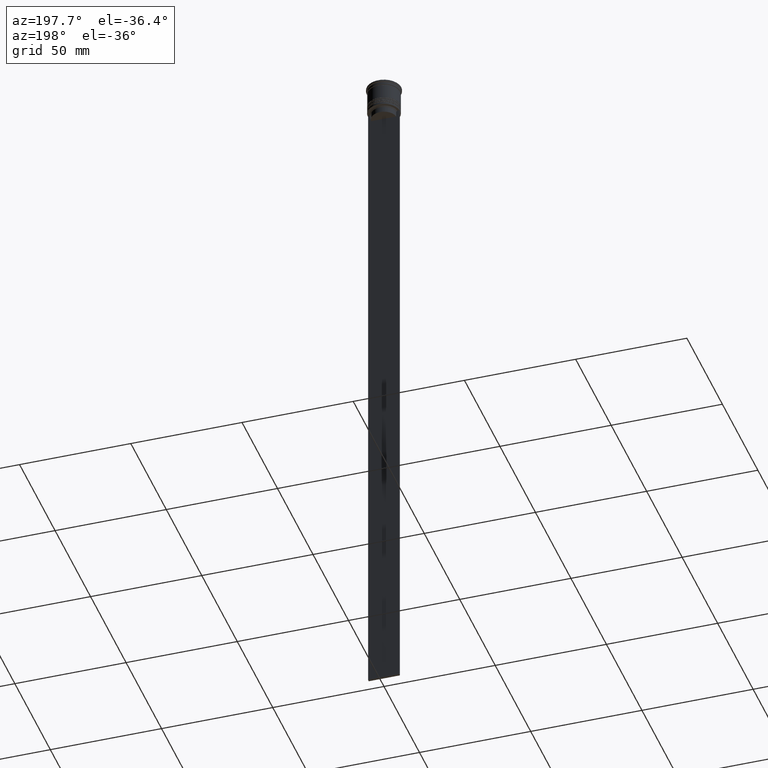
[diagram: clean part render]
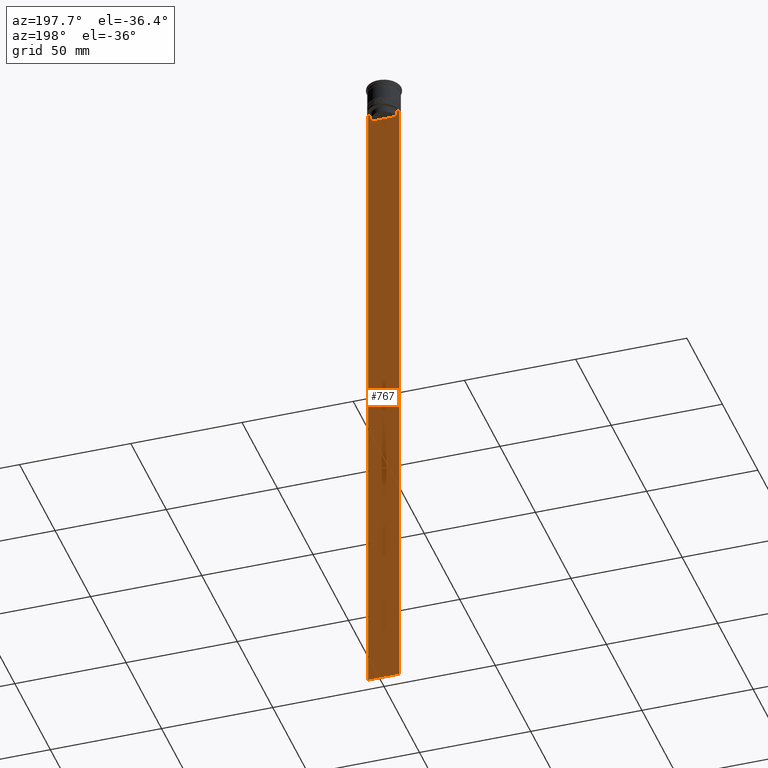
[diagram: same view with one face highlighted and labeled with its STEP entity id]
A machine part, auxiliary view. The second image highlights one B-rep face of the part: STEP entity #767.
In plain terms, the highlighted planar face has unit normal (0, -1, -0).
Its self-contained STEP definition (entity closure, byte-faithful):
#68 = ORIENTED_EDGE ( 'NONE', *, *, #2017, .T. ) ;
#82 = VERTEX_POINT ( 'NONE', #282 ) ;
#150 = CARTESIAN_POINT ( 'NONE',  ( 7.000000000000012434, 0.4999999999999978351, -12.50000000000000000 ) ) ;
#154 = CARTESIAN_POINT ( 'NONE',  ( 5.627832620112292794, 0.4999999999999978351, -13.00000000000000000 ) ) ;
#184 = CARTESIAN_POINT ( 'NONE',  ( -6.999999999999987566, 0.4999999999999980571, -12.50000000000000000 ) ) ;
#187 = CARTESIAN_POINT ( 'NONE',  ( 5.795128760752291441, 0.4999999999999978351, -12.83336023406855020 ) ) ;
#212 = DIRECTION ( 'NONE',  ( 1.000000000000000000, 0.000000000000000000, 0.000000000000000000 ) ) ;
#264 = VECTOR ( 'NONE', #1007, 1000.000000000000000 ) ;
#269 = VERTEX_POINT ( 'NONE', #184 ) ;
#282 = CARTESIAN_POINT ( 'NONE',  ( 6.129641098791995368, 0.4999999999999978351, -12.50000000000000000 ) ) ;
#300 = ORIENTED_EDGE ( 'NONE', *, *, #1276, .T. ) ;
#326 = CARTESIAN_POINT ( 'NONE',  ( 7.000000000000012434, 0.4999999999999978351, -312.5000000000000000 ) ) ;
#328 = B_SPLINE_CURVE_WITH_KNOTS ( 'NONE', 3,
 ( #1837, #1306, #2029, #2055 ),
 .UNSPECIFIED., .F., .F.,
 ( 4, 4 ),
 ( 0.01045365750109871796, 0.01116204421161398619 ),
 .UNSPECIFIED. ) ;
#348 = VERTEX_POINT ( 'NONE', #1511 ) ;
#400 = DIRECTION ( 'NONE',  ( 0.000000000000000000, -1.000000000000000000, -0.000000000000000000 ) ) ;
#416 = VERTEX_POINT ( 'NONE', #612 ) ;
#447 = ORIENTED_EDGE ( 'NONE', *, *, #1611, .T. ) ;
#485 = VECTOR ( 'NONE', #1579, 1000.000000000000000 ) ;
#490 = LINE ( 'NONE', #854, #485 ) ;
#497 = VERTEX_POINT ( 'NONE', #1631 ) ;
#520 = EDGE_CURVE ( 'NONE', #82, #416, #1960, .T. ) ;
#542 = CARTESIAN_POINT ( 'NONE',  ( 7.000000000000012434, 0.4999999999999978351, -312.5000000000000000 ) ) ;
#564 = CARTESIAN_POINT ( 'NONE',  ( 5.627832620112292794, 0.4999999999999978351, -13.00000000000000000 ) ) ;
#582 = LINE ( 'NONE', #1303, #2233 ) ;
#588 = CARTESIAN_POINT ( 'NONE',  ( 0.000000000000000000, 0.4999999999999978351, -15.50000000000000000 ) ) ;
#601 = VERTEX_POINT ( 'NONE', #692 ) ;
#602 = CARTESIAN_POINT ( 'NONE',  ( -6.999999999999987566, 0.4999999999999978351, 1.535668847618198329 ) ) ;
#612 = CARTESIAN_POINT ( 'NONE',  ( 7.000000000000012434, 0.4999999999999978351, -12.50000000000000000 ) ) ;
#658 = DIRECTION ( 'NONE',  ( 0.000000000000000000, 0.000000000000000000, -1.000000000000000000 ) ) ;
#682 = EDGE_CURVE ( 'NONE', #721, #348, #884, .T. ) ;
#692 = CARTESIAN_POINT ( 'NONE',  ( -5.627832620112292794, 0.4999999999999978351, -15.50000000000000000 ) ) ;
#721 = VERTEX_POINT ( 'NONE', #542 ) ;
#767 = ADVANCED_FACE ( 'NONE', ( #1998 ), #1481, .F. ) ;
#774 = ORIENTED_EDGE ( 'NONE', *, *, #682, .T. ) ;
#790 = DIRECTION ( 'NONE',  ( 0.000000000000000000, 0.000000000000000000, -1.000000000000000000 ) ) ;
#798 = CARTESIAN_POINT ( 'NONE',  ( -5.627832620112292794, 0.4999999999999978351, 0.000000000000000000 ) ) ;
#834 = LINE ( 'NONE', #798, #264 ) ;
#840 = EDGE_CURVE ( 'NONE', #1905, #82, #1540, .T. ) ;
#854 = CARTESIAN_POINT ( 'NONE',  ( 7.000000000000012434, 0.4999999999999978351, -12.50000000000000000 ) ) ;
#882 = EDGE_CURVE ( 'NONE', #497, #601, #834, .T. ) ;
#884 = LINE ( 'NONE', #326, #1163 ) ;
#960 = ORIENTED_EDGE ( 'NONE', *, *, #520, .T. ) ;
#961 = LINE ( 'NONE', #2215, #2118 ) ;
#988 = ORIENTED_EDGE ( 'NONE', *, *, #1681, .T. ) ;
#1007 = DIRECTION ( 'NONE',  ( 0.000000000000000000, 0.000000000000000000, -1.000000000000000000 ) ) ;
#1044 = ORIENTED_EDGE ( 'NONE', *, *, #882, .T. ) ;
#1047 = VECTOR ( 'NONE', #1059, 1000.000000000000000 ) ;
#1059 = DIRECTION ( 'NONE',  ( 1.000000000000000000, 0.000000000000000000, 0.000000000000000000 ) ) ;
#1068 = EDGE_CURVE ( 'NONE', #269, #1911, #490, .T. ) ;
#1100 = EDGE_LOOP ( 'NONE', ( #1381, #300, #1044, #68, #988, #1385, #960, #447, #774, #1951 ) ) ;
#1117 = DIRECTION ( 'NONE',  ( 0.000000000000000000, 0.000000000000000000, -1.000000000000000000 ) ) ;
#1131 = CARTESIAN_POINT ( 'NONE',  ( 5.962396079681187011, 0.4999999999999978351, -12.66669137279835411 ) ) ;
#1142 = CARTESIAN_POINT ( 'NONE',  ( 6.129641098791995368, 0.4999999999999978351, -12.50000000000000000 ) ) ;
#1163 = VECTOR ( 'NONE', #2119, 1000.000000000000000 ) ;
#1276 = EDGE_CURVE ( 'NONE', #1911, #497, #328, .T. ) ;
#1295 = DIRECTION ( 'NONE',  ( -0.000000000000000000, -0.000000000000000000, 1.000000000000000000 ) ) ;
#1303 = CARTESIAN_POINT ( 'NONE',  ( 5.627832620112292794, 0.4999999999999978351, 0.000000000000000000 ) ) ;
#1306 = CARTESIAN_POINT ( 'NONE',  ( -5.962396146966409738, 0.4999999999999978351, -12.66669130573587054 ) ) ;
#1381 = ORIENTED_EDGE ( 'NONE', *, *, #1068, .T. ) ;
#1385 = ORIENTED_EDGE ( 'NONE', *, *, #840, .T. ) ;
#1472 = VECTOR ( 'NONE', #658, 1000.000000000000000 ) ;
#1481 = PLANE ( 'NONE',  #1922 ) ;
#1511 = CARTESIAN_POINT ( 'NONE',  ( -6.999999999999987566, 0.4999999999999978351, -312.5000000000000000 ) ) ;
#1540 = B_SPLINE_CURVE_WITH_KNOTS ( 'NONE', 3,
 ( #564, #187, #1131, #1142 ),
 .UNSPECIFIED., .F., .F.,
 ( 4, 4 ),
 ( 0.02651134470867373347, 0.02721991123504337307 ),
 .UNSPECIFIED. ) ;
#1579 = DIRECTION ( 'NONE',  ( 1.000000000000000000, 0.000000000000000000, 0.000000000000000000 ) ) ;
#1610 = CARTESIAN_POINT ( 'NONE',  ( 5.627832620112292794, 0.4999999999999978351, -15.50000000000000000 ) ) ;
#1611 = EDGE_CURVE ( 'NONE', #416, #721, #961, .T. ) ;
#1631 = CARTESIAN_POINT ( 'NONE',  ( -5.627832620112292794, 0.4999999999999978351, -13.00000000000000000 ) ) ;
#1681 = EDGE_CURVE ( 'NONE', #1881, #1905, #582, .T. ) ;
#1708 = VECTOR ( 'NONE', #212, 1000.000000000000000 ) ;
#1834 = LINE ( 'NONE', #588, #1708 ) ;
#1837 = CARTESIAN_POINT ( 'NONE',  ( -6.129641098791995368, 0.4999999999999978351, -12.50000000000000000 ) ) ;
#1841 = CARTESIAN_POINT ( 'NONE',  ( 7.000000000000012434, 0.4999999999999978351, 1.535668847618198329 ) ) ;
#1881 = VERTEX_POINT ( 'NONE', #1610 ) ;
#1905 = VERTEX_POINT ( 'NONE', #154 ) ;
#1911 = VERTEX_POINT ( 'NONE', #2329 ) ;
#1922 = AXIS2_PLACEMENT_3D ( 'NONE', #1841, #400, #1117 ) ;
#1951 = ORIENTED_EDGE ( 'NONE', *, *, #2132, .F. ) ;
#1960 = LINE ( 'NONE', #150, #1047 ) ;
#1998 = FACE_OUTER_BOUND ( 'NONE', #1100, .T. ) ;
#2017 = EDGE_CURVE ( 'NONE', #601, #1881, #1834, .T. ) ;
#2029 = CARTESIAN_POINT ( 'NONE',  ( -5.795128834036803234, 0.4999999999999978351, -12.83336016107156574 ) ) ;
#2055 = CARTESIAN_POINT ( 'NONE',  ( -5.627832620112292794, 0.4999999999999978351, -13.00000000000000000 ) ) ;
#2118 = VECTOR ( 'NONE', #790, 1000.000000000000000 ) ;
#2119 = DIRECTION ( 'NONE',  ( -1.000000000000000000, 0.000000000000000000, 0.000000000000000000 ) ) ;
#2132 = EDGE_CURVE ( 'NONE', #269, #348, #2224, .T. ) ;
#2215 = CARTESIAN_POINT ( 'NONE',  ( 7.000000000000012434, 0.4999999999999978351, 1.535668847618198329 ) ) ;
#2224 = LINE ( 'NONE', #602, #1472 ) ;
#2233 = VECTOR ( 'NONE', #1295, 1000.000000000000000 ) ;
#2329 = CARTESIAN_POINT ( 'NONE',  ( -6.129641098791995368, 0.4999999999999978351, -12.50000000000000000 ) ) ;